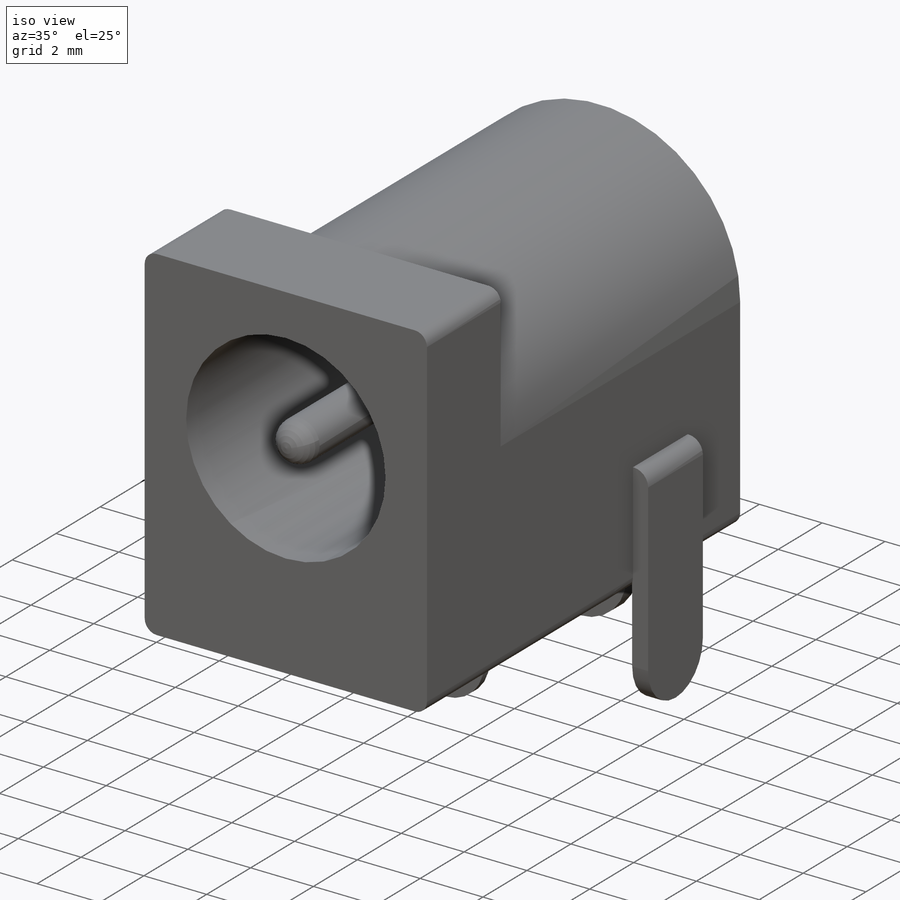
[diagram: iso view]
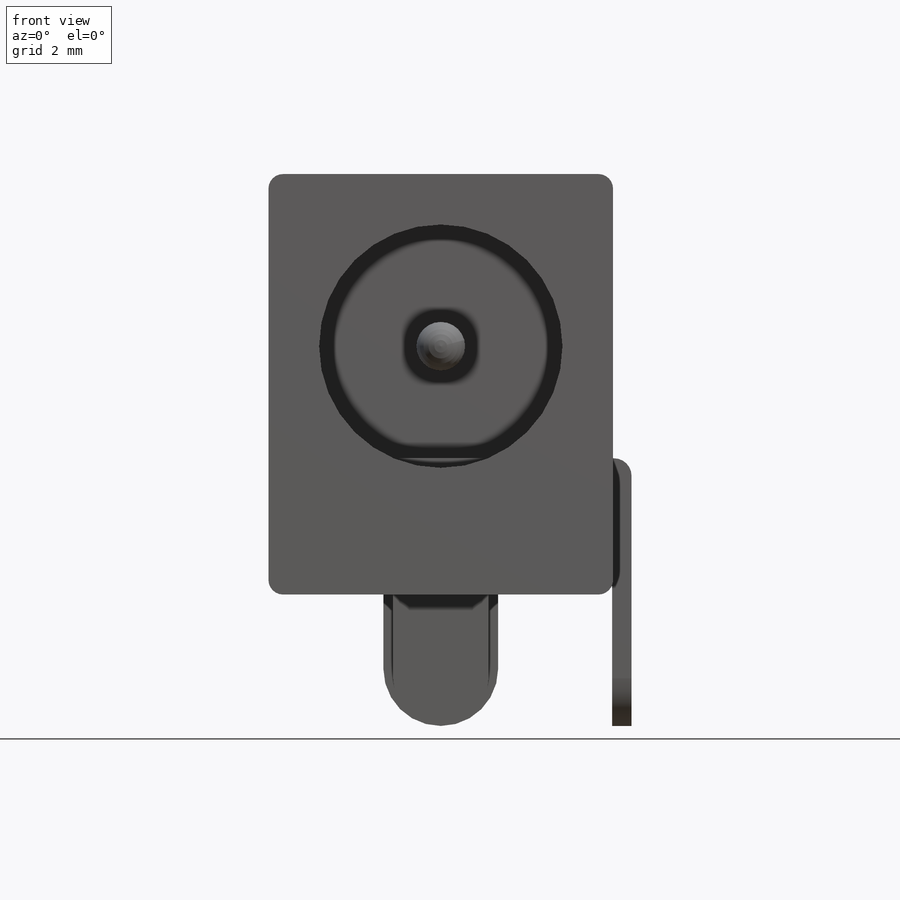
[diagram: front view]
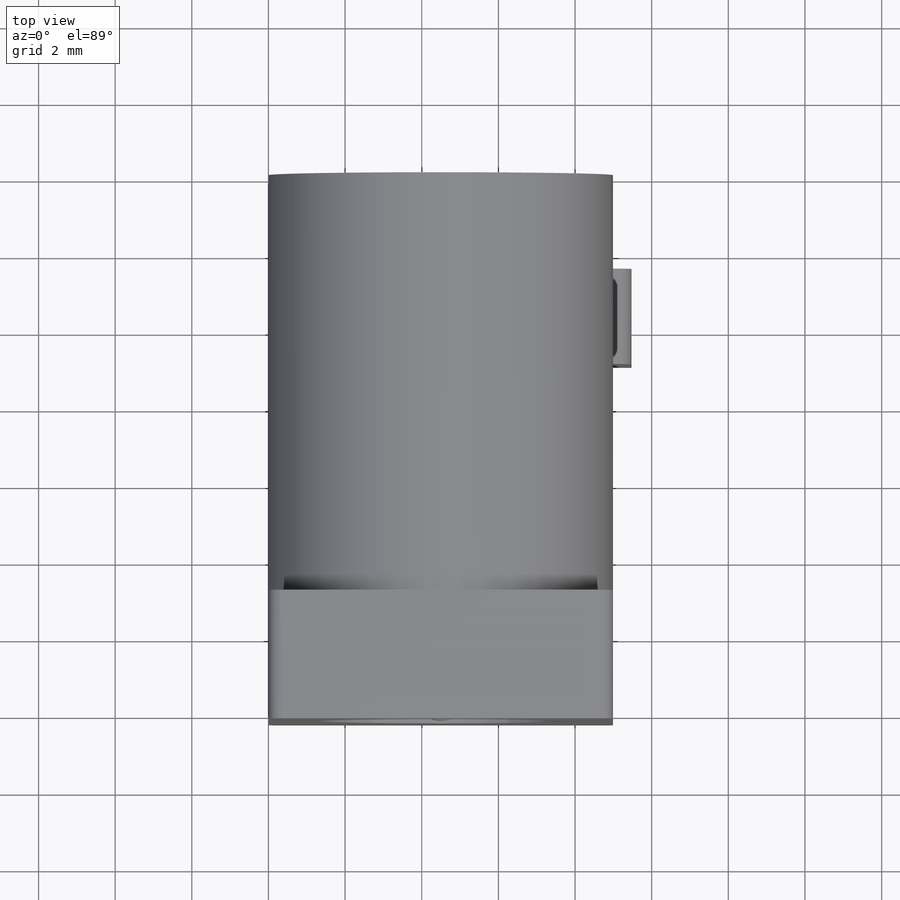
[diagram: top view]
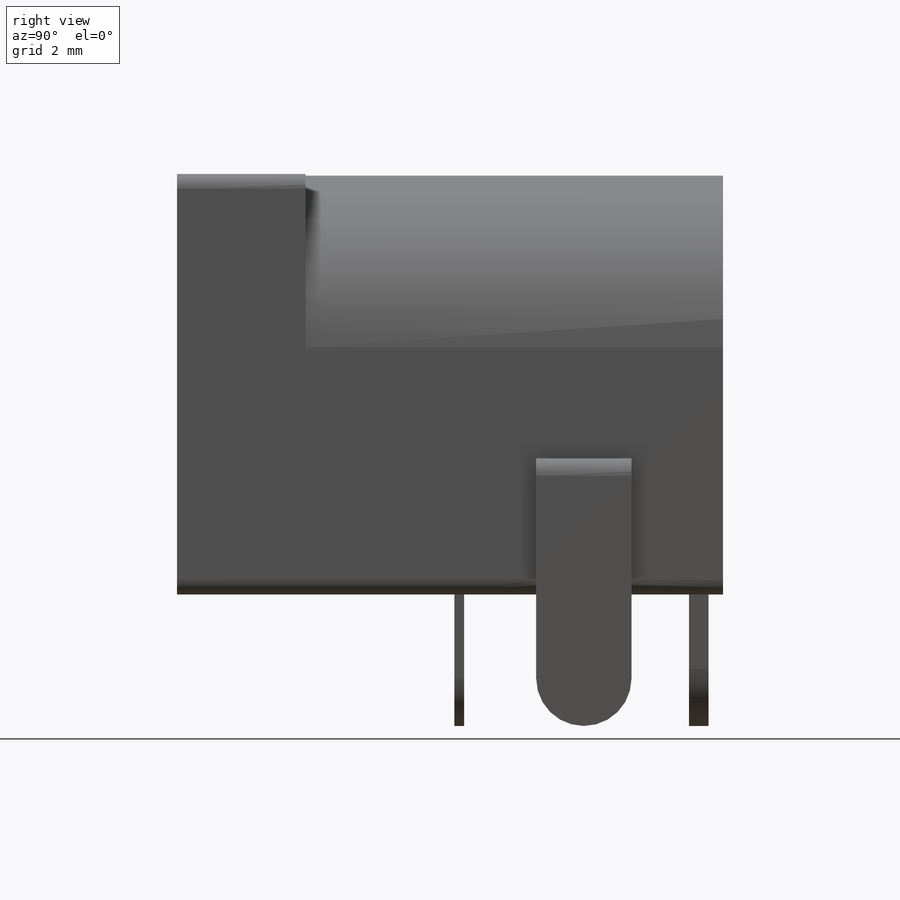
[diagram: right view]
SOLIDWORKS PART (.sldprt)
format: sldprt  version: not decoded by parser v0  size: 313,344 bytes
history: native  units: mm
features: sketch x9, cut_extrude x5, extrude x2, fillet x2, material x1, plane x1 (+13 scaffold rows collapsed; 1 parser-record rows omitted)
feature tree (34):
  parser-record x1  (decoder bookkeeping rows leaked as tree rows — omitted from the tree; the rows remain in map.json)
  scaffold x13  (default folders/planes/origin — collapsed)
  material  "Material <not specified>"
  plane  "Side"
  sketch  "Sketch1"  dims[D3=0.381mm D1=8.9916mm D2=10.9728mm]
  extrude  "Base-Extrude"  Depth=14.2494mm
  sketch  "Sketch2"  dims[c1.D1=~2.184163mm c1.D2=~6.182569mm c1.D3=6.35mm c1.D4=1.27mm c2.D1=6.477mm c2.D2=4.4958mm]
  cut_extrude  "Cut-Extrude1"  Depth=11.7094mm
  fillet  "Fillet1"  Radius=0.635mm
  sketch  "Sketch3"  dims[D2=0.0254mm D1=0.0mm]
  cut_extrude  "Cut-Extrude2"  Depth=3.3528mm
  sketch  "Sketch4"  dims[c1.D1=0.508mm c1.D2=2.9972mm c1.D3=2.4892mm c1.D4=2.4892mm c1.D5=0.0254mm c1.D6=0.508mm c1.D7=1.2446mm c1.D8=1.4986mm c1.D9=7.239mm c1.D10=0.254mm c1.D11=6.6294mm c1.D12=1.8796mm c2.D5=0.0254mm]
  extrude  "Boss-Extrude1"  Depth=3.683mm
  fillet  "Fillet2"  Radius=0.4572mm
  sketch  "Sketch5"  dims[D1=0.254mm]
  cut_extrude  "Cut-Extrude3"  Depth=0.508mm
  sketch  "Sketch6"  dims[D1=0.254mm]
  cut_extrude  "Cut-Extrude4"  Depth=0.508mm
  sketch  "Sketch7"  dims[D1=0.254mm]
  cut_extrude  "Cut-Extrude5"  Depth=0.508mm
  sketch  "Sketch8"  dims[D4=3.556mm D5=3.048mm D6=3.048mm D1=4.7498mm D2=3.2512mm D3=2.9972mm]
  sketch  "Sketch9"  dims[D1=0.508mm]
decode coverage: 18 of 18 modeling features carry decoded parameters
note: ~ marks probable driven/reference dimensions
note: suppression state not decoded; provenance and decode notes live in map.json
